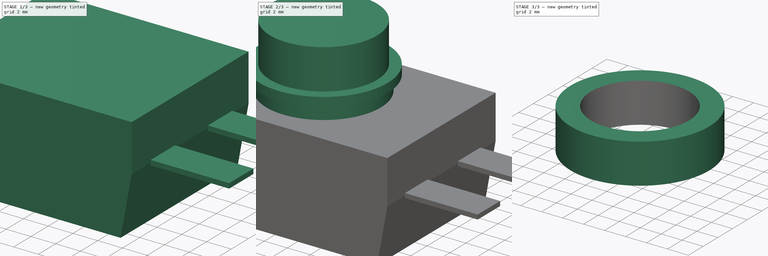
[diagram: build sequence overview — one tinted view per stage of 3, left to right]
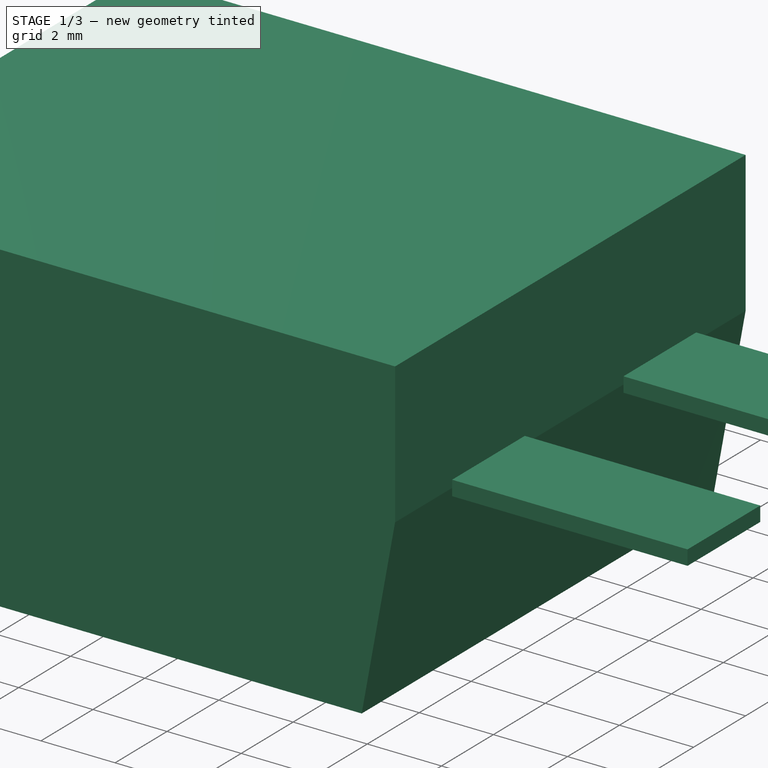
[diagram: stage 1 of 3 — iso view after this stage's code; geometry added in this stage tinted green]
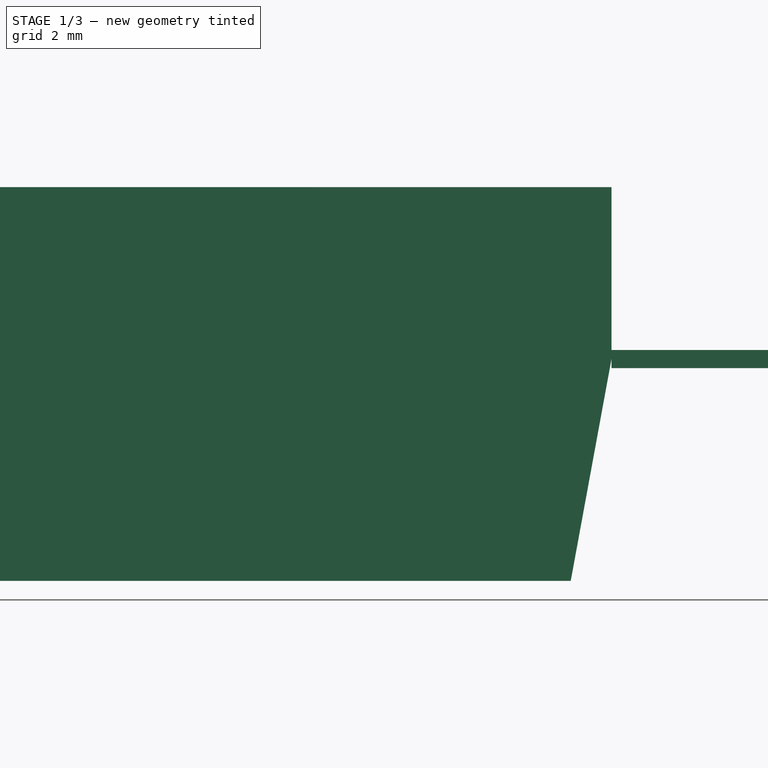
[diagram: stage 1 of 3 — front view after this stage's code; geometry added in this stage tinted green]
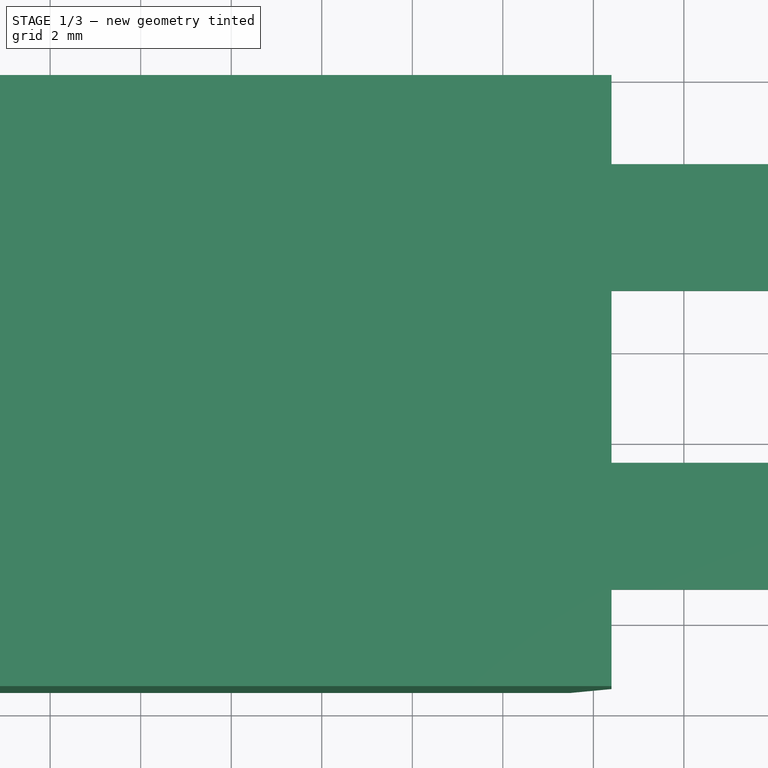
[diagram: stage 1 of 3 — top view after this stage's code; geometry added in this stage tinted green]
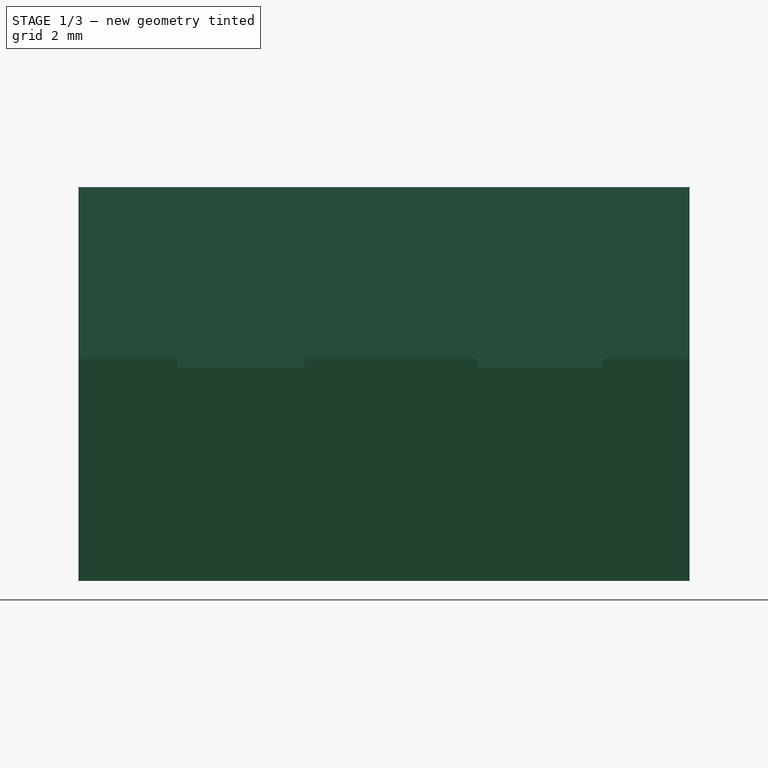
[diagram: stage 1 of 3 — right view after this stage's code; geometry added in this stage tinted green]
FCSTD DOCUMENT  (FreeCAD 0.19R24291 (Git))
Label: 550PB-ND_Judco_40-4520-00
License: Creative Commons Attribution
LicenseURL: http://creativecommons.org/licenses/by/4.0/
objects: Sketcher::SketchObject×7, PartDesign::Pad×7, PartDesign::Plane×6, PartDesign::Body×2, PartDesign::SubShapeBinder×1, PartDesign::ShapeBinder×1, App::Part×1
note: 31 computed .brp shape members not serialized (recipe doc carries the construction recipe); baked Part::Feature solids carry a one-line shape summary decoded from their .brp

FEATURE [Sketcher::SketchObject] Sketch
  FullyConstrained = true
  MapMode = 5
  Placement = pos=(0,0,0) rot=(1,0,0;1.5708rad)
  Support = -> [XZ_Plane]
  sketch-geometry (5):
    g0: LineSegment StartX=0 StartY=8.7 StartZ=0 EndX=0 EndY=0 EndZ=0
    g1: LineSegment StartX=0 StartY=0 StartZ=0 EndX=15.5 EndY=0 EndZ=0
    g2: LineSegment StartX=15.5 StartY=0 StartZ=0 EndX=16.4 EndY=4.9 EndZ=0
    g3: LineSegment StartX=16.4 StartY=4.9 StartZ=0 EndX=16.4 EndY=8.7 EndZ=0
    g4: LineSegment StartX=16.4 StartY=8.7 StartZ=0 EndX=0 EndY=8.7 EndZ=0
  constraints (14):
    c: PointOnObject(g0,g-2)
    c: Coincident(g0,g-1)
    c: Coincident(g0,g1)
    c: PointOnObject(g1,g-1)
    c: Coincident(g1,g2)
    c: Coincident(g2,g3)
    c: Vertical(g3)
    c: Coincident(g3,g4)
    c: Coincident(g4,g0)
    c: Horizontal(g4)
    c: DistanceX(g1,g1) = 15.5
    c: DistanceY(g0,g0) = 8.7
    c: DistanceX(g4,g4) = 16.4
    c: DistanceY(g3,g3) = 3.8
FEATURE [PartDesign::Pad] Pad
  Direction = (1,1,1)
  Length = 13.5
  Length2 = 100
  Placement = pos=(0,0,0) rot=(1,0,0;1.5708rad)
  Profile = -> Sketch
  Type = 0
FEATURE [PartDesign::Plane] DatumPlane
  AttachmentOffset = pos=(0,0,0) rot=(1,0,0;1.5708rad)
  Length = 60
  MapMode = 7
  Placement = pos=(16.4,3.3e-15,4.9) rot=(0,1,0;3.14159rad)
  ResizeMode = 0
  Support = -> [Pad]
  Width = 60
FEATURE [Sketcher::SketchObject] Sketch001
  FullyConstrained = false
  MapMode = 5
  Placement = pos=(16.4,3.3e-15,4.9) rot=(0,1,0;3.14159rad)
  Support = -> [DatumPlane]
  sketch-geometry (8):
    g0: LineSegment StartX=0 StartY=-1.90405 StartZ=0 EndX=-6.35 EndY=-1.90405 EndZ=0
    g1: LineSegment StartX=-6.35 StartY=-1.90405 StartZ=0 EndX=-6.35 EndY=-4.70405 EndZ=0
    g2: LineSegment StartX=-6.35 StartY=-4.70405 StartZ=0 EndX=0 EndY=-4.70405 EndZ=0
    g3: LineSegment StartX=0 StartY=-4.70405 StartZ=0 EndX=0 EndY=-1.90405 EndZ=0
    g4: LineSegment StartX=0 StartY=-8.50405 StartZ=0 EndX=-6.35 EndY=-8.50405 EndZ=0
    g5: LineSegment StartX=-6.35 StartY=-8.50405 StartZ=0 EndX=-6.35 EndY=-11.304 EndZ=0
    g6: LineSegment StartX=-6.35 StartY=-11.304 StartZ=0 EndX=0 EndY=-11.304 EndZ=0
    g7: LineSegment StartX=0 StartY=-11.304 StartZ=0 EndX=0 EndY=-8.50405 EndZ=0
  constraints (23):
    c: Coincident(g0,g1)
    c: Coincident(g1,g2)
    c: Coincident(g2,g3)
    c: Coincident(g3,g0)
    c: Horizontal(g0)
    c: Horizontal(g2)
    c: Vertical(g1)
    c: Vertical(g3)
    c: PointOnObject(g0,g-2)
    c: Coincident(g4,g5)
    c: Coincident(g5,g6)
    c: Coincident(g6,g7)
    c: Coincident(g7,g4)
    c: Horizontal(g4)
    c: Horizontal(g6)
    c: Vertical(g5)
    c: Vertical(g7)
    c: PointOnObject(g4,g-2)
    c: Equal(g4,g2)
    c: Equal(g5,g1)
    c: DistanceY(g5,g5) = 2.8
    c: DistanceX(g0,g0) = 6.35
    c: DistanceY(g4,g1) = 3.8
FEATURE [PartDesign::Pad] Pad001
  BaseFeature = -> Pad
  Direction = (1,1,1)
  Length = 0.4
  Length2 = 100
  Midplane = true
  Placement = pos=(0,0,0) rot=(1,0,0;1.5708rad)
  Profile = -> Sketch001
  Type = 0
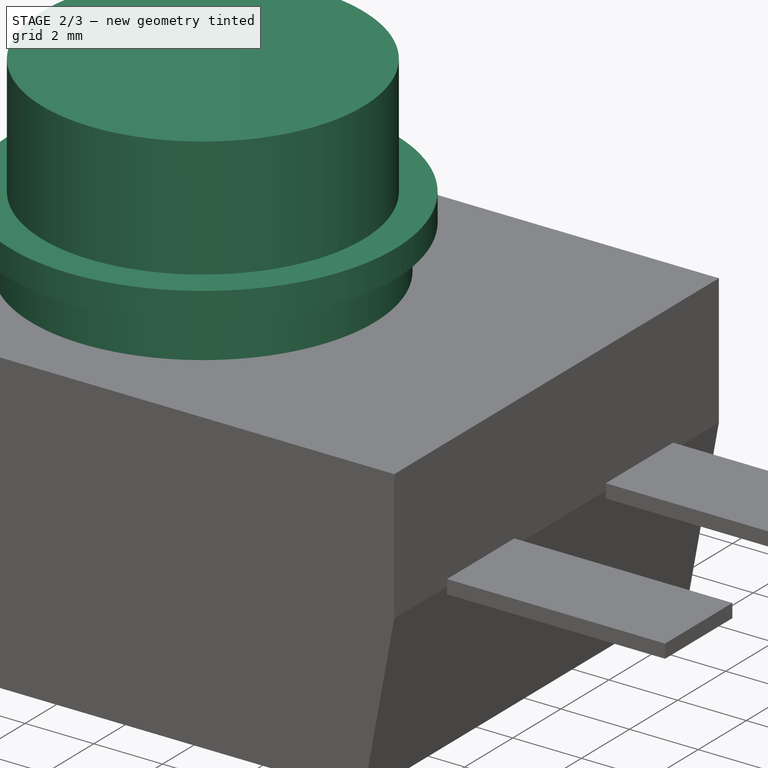
[diagram: stage 2 of 3 — iso view after this stage's code; geometry added in this stage tinted green]
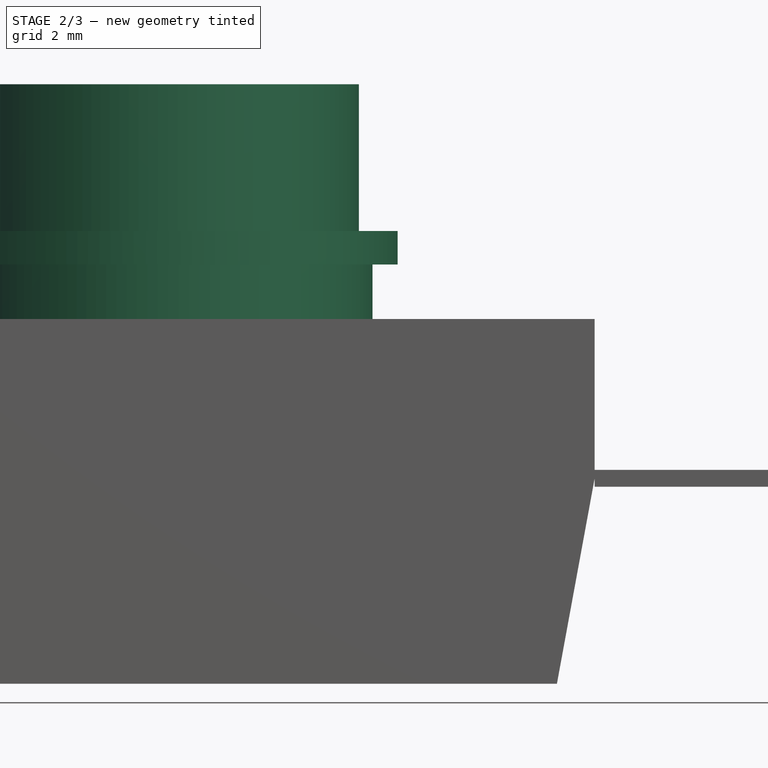
[diagram: stage 2 of 3 — front view after this stage's code; geometry added in this stage tinted green]
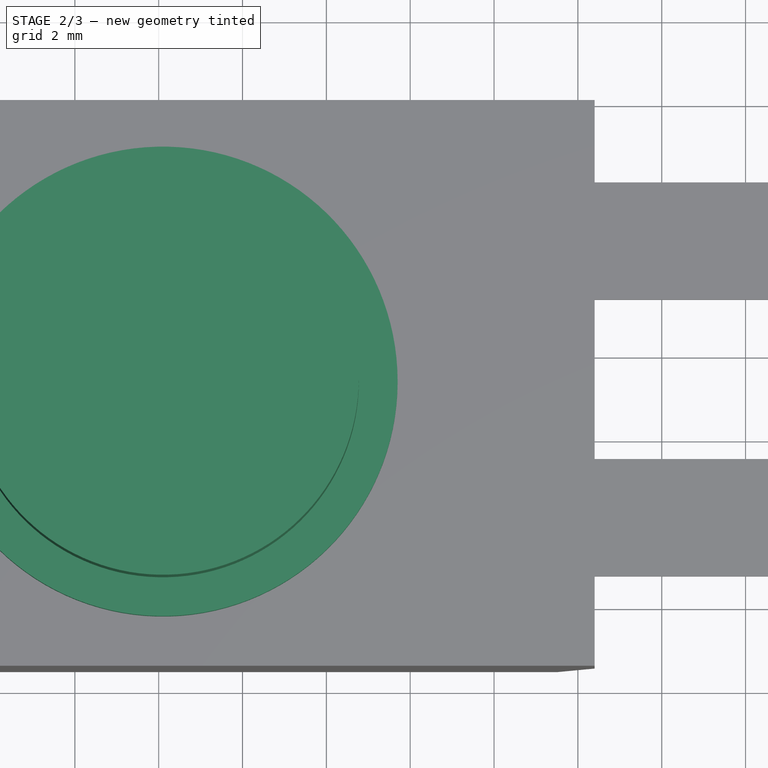
[diagram: stage 2 of 3 — top view after this stage's code; geometry added in this stage tinted green]
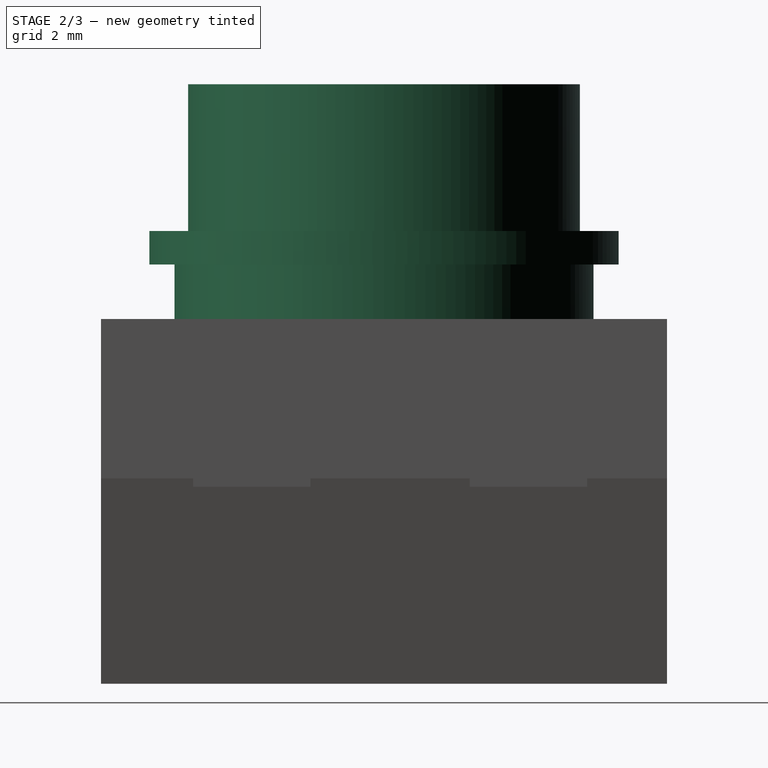
[diagram: stage 2 of 3 — right view after this stage's code; geometry added in this stage tinted green]
FEATURE [PartDesign::Plane] DatumPlane001
  Length = 60
  MapMode = 5
  Placement = pos=(0,9.7e-15,8.7) rot=(0,0,1;3.14159rad)
  ResizeMode = 0
  Support = -> [Pad001]
  Width = 60
FEATURE [Sketcher::SketchObject] Sketch002
  ExternalGeometry = -> [Pad001]
  FullyConstrained = true
  MapMode = 5
  Placement = pos=(0,9.7e-15,8.7) rot=(0,0,1;3.14159rad)
  Support = -> [DatumPlane001]
  sketch-geometry (3):
    g0: Circle CenterX=-6.1 CenterY=6.75 CenterZ=0 NormalX=0 NormalY=0 NormalZ=1 AngleXU=0 Radius=5
    g1: LineSegment StartX=-6.1 StartY=6.75 StartZ=0 EndX=-6.1 EndY=13.5 EndZ=0
    g2: LineSegment StartX=-6.1 StartY=6.75 StartZ=0 EndX=-6.1 EndY=0 EndZ=0
  constraints (9):
    c: Diameter(g0) = 10
    c: DistanceX(g0,g-3) = 6.1
    c: Coincident(g1,g0)
    c: PointOnObject(g1,g-3)
    c: Vertical(g1)
    c: Coincident(g2,g0)
    c: PointOnObject(g2,g-4)
    c: Vertical(g2)
    c: Equal(g1,g2)
FEATURE [PartDesign::Pad] Pad002
  BaseFeature = -> Pad001
  Direction = (1,1,1)
  Length = 1.3
  Length2 = 100
  Placement = pos=(0,0,0) rot=(1,0,0;1.5708rad)
  Profile = -> Sketch002
  Type = 0
FEATURE [PartDesign::Plane] DatumPlane002
  Length = 60
  MapMode = 5
  Placement = pos=(-1.2e-15,1.47e-14,10) rot=(0,0,1;3.14159rad)
  ResizeMode = 0
  Support = -> [Pad002]
  Width = 60
FEATURE [Sketcher::SketchObject] Sketch003
  ExternalGeometry = -> [Pad002]
  FullyConstrained = true
  MapMode = 5
  Placement = pos=(-1.2e-15,1.47e-14,10) rot=(0,0,1;3.14159rad)
  Support = -> [DatumPlane002]
  sketch-geometry (1):
    g0: Circle CenterX=-6.1 CenterY=6.75 CenterZ=0 NormalX=0 NormalY=0 NormalZ=1 AngleXU=0 Radius=5.6
  constraints (2):
    c: Coincident(g0,g-3)
    c: Diameter(g0) = 11.2
FEATURE [PartDesign::Pad] Pad003
  BaseFeature = -> Pad002
  Direction = (1,1,1)
  Length = 0.8
  Length2 = 100
  Placement = pos=(0,0,0) rot=(1,0,0;1.5708rad)
  Profile = -> Sketch003
  Type = 0
FEATURE [PartDesign::Plane] DatumPlane003
  Length = 60
  MapMode = 5
  Placement = pos=(0,2.06e-14,10.8) rot=(0,0,1;3.14159rad)
  ResizeMode = 0
  Support = -> [Pad003]
  Width = 60
FEATURE [Sketcher::SketchObject] Sketch004
  ExternalGeometry = -> [Pad003]
  FullyConstrained = true
  MapMode = 5
  Placement = pos=(0,2.06e-14,10.8) rot=(0,0,1;3.14159rad)
  Support = -> [DatumPlane003]
  sketch-geometry (1):
    g0: Circle CenterX=-6.1 CenterY=6.75 CenterZ=0 NormalX=0 NormalY=0 NormalZ=1 AngleXU=0 Radius=4.675
  constraints (2):
    c: Coincident(g0,g-3)
    c: Diameter(g0) = 9.35
FEATURE [PartDesign::Pad] Pad004
  BaseFeature = -> Pad003
  Direction = (1,1,1)
  Length = 3.5
  Length2 = 100
  Placement = pos=(0,0,0) rot=(1,0,0;1.5708rad)
  Profile = -> Sketch004
  Type = 0
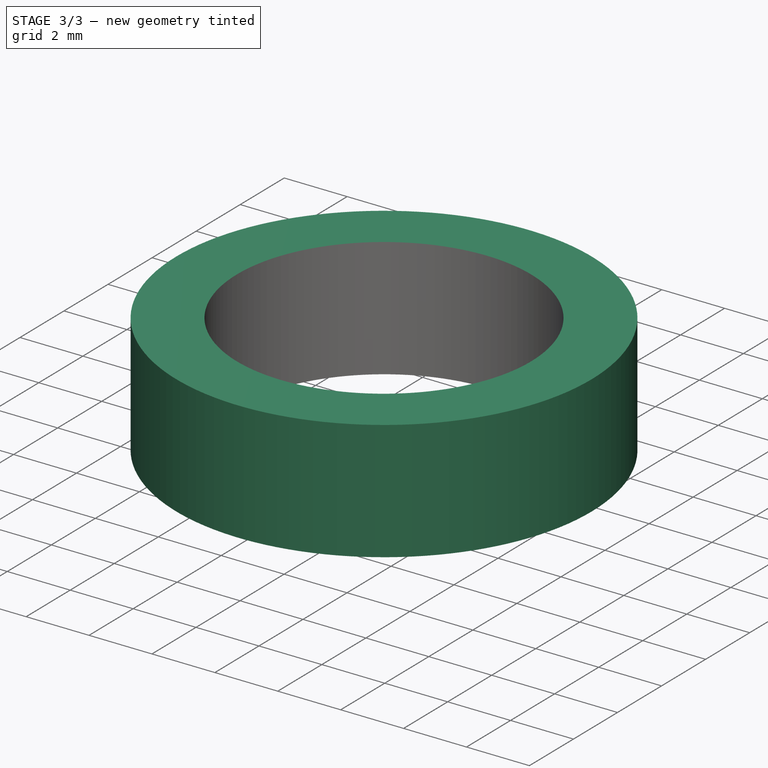
[diagram: stage 3 of 3 — iso view after this stage's code; geometry added in this stage tinted green]
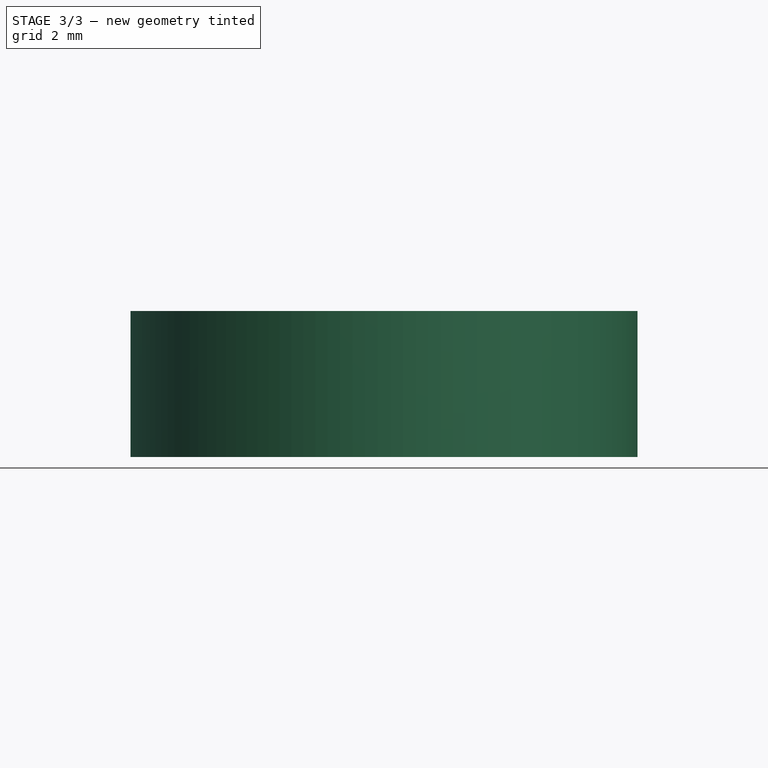
[diagram: stage 3 of 3 — front view after this stage's code; geometry added in this stage tinted green]
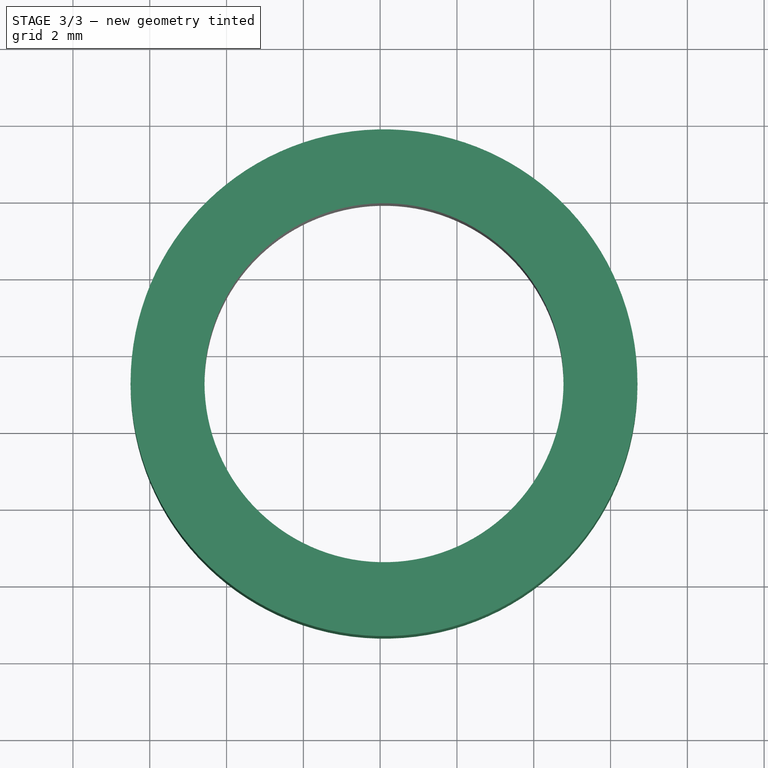
[diagram: stage 3 of 3 — top view after this stage's code; geometry added in this stage tinted green]
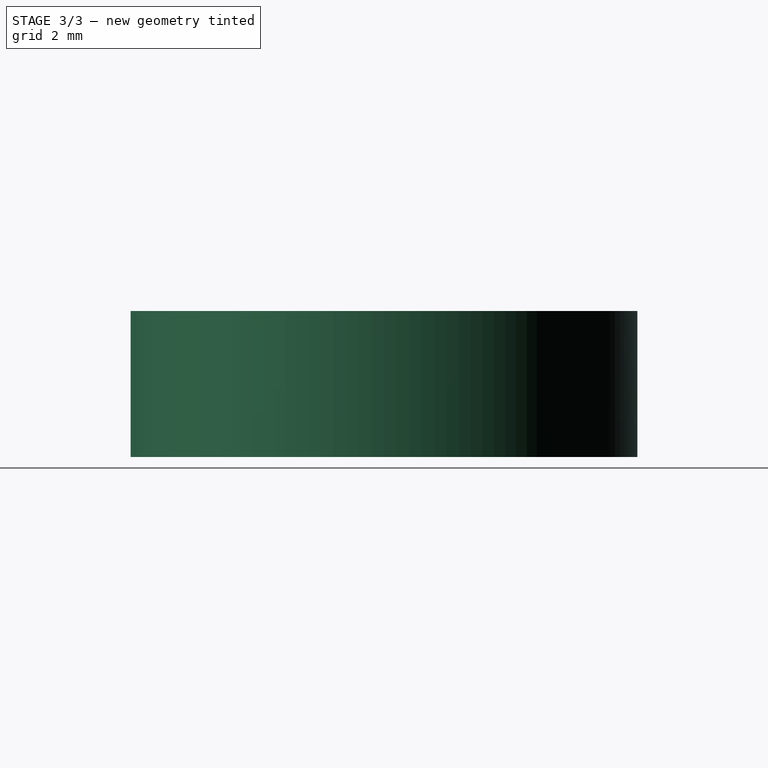
[diagram: stage 3 of 3 — right view after this stage's code; geometry added in this stage tinted green]
FEATURE [PartDesign::Plane] DatumPlane004
  Length = 60
  MapMode = 5
  Placement = pos=(-1.8e-15,3.46e-14,14.3) rot=(0,0,1;3.14159rad)
  ResizeMode = 0
  Support = -> [Pad004]
  Width = 60
FEATURE [Sketcher::SketchObject] Sketch005
  ExternalGeometry = -> [Pad004]
  FullyConstrained = true
  MapMode = 5
  Placement = pos=(-1.8e-15,3.46e-14,14.3) rot=(0,0,1;3.14159rad)
  Support = -> [DatumPlane004]
  sketch-geometry (1):
    g0: Circle CenterX=-6.1 CenterY=6.75 CenterZ=0 NormalX=0 NormalY=0 NormalZ=1 AngleXU=0 Radius=2.75
  constraints (2):
    c: Coincident(g0,g-3)
    c: Diameter(g0) = 5.5
FEATURE [PartDesign::Pad] Pad005
  BaseFeature = -> Pad004
  Direction = (1,1,1)
  Length = 3.2
  Length2 = 100
  Placement = pos=(0,0,0) rot=(1,0,0;1.5708rad)
  Profile = -> Sketch005
  Type = 0
FEATURE [PartDesign::Body] Body
  Group = -> [Sketch,Pad,DatumPlane,Sketch001,Pad001,DatumPlane001,Sketch002,Pad002,DatumPlane002,Sketch003,Pad003,DatumPlane003,Sketch004,Pad004,DatumPlane004,Sketch005,Pad005]
  Origin = -> Origin
  Tip = -> Pad005
FEATURE [PartDesign::SubShapeBinder] Binder
  BindMode = 0
  ClaimChildren = false
  Context = -> Body001 [Binder.]
  Fuse = false
  MakeFace = true
  PartialLoad = false
  Relative = true
  Support = -> [Body[Pad005.Edge9]]
  _Version = 2
FEATURE [PartDesign::ShapeBinder] CopyPad005
  Placement = pos=(0,0,0) rot=(1,0,0;1.5708rad)
  TraceSupport = false
FEATURE [PartDesign::Plane] DatumPlane005
  Length = 60
  MapMode = 5
  Placement = pos=(0,3.14e-14,10.8) rot=(0,0,1;3.14159rad)
  ResizeMode = 0
  Support = -> [CopyPad005]
  Width = 60
FEATURE [Sketcher::SketchObject] Sketch006
  ExternalGeometry = -> [Binder]
  FullyConstrained = true
  MapMode = 5
  Placement = pos=(0,3.14e-14,10.8) rot=(0,0,1;3.14159rad)
  Support = -> [DatumPlane005]
  sketch-geometry (2):
    g0: Circle CenterX=-6.1 CenterY=6.75 CenterZ=0 NormalX=0 NormalY=0 NormalZ=1 AngleXU=0 Radius=4.675
    g1: Circle CenterX=-6.1 CenterY=6.75 CenterZ=0 NormalX=0 NormalY=0 NormalZ=1 AngleXU=0 Radius=6.6
  constraints (4):
    c: Coincident(g0,g-3)
    c: Equal(g0,g-3)
    c: Coincident(g1,g0)
    c: Diameter(g1) = 13.2
FEATURE [PartDesign::Pad] Pad006
  Direction = (1,1,1)
  Length = 3.8
  Length2 = 100
  Placement = pos=(0,3.14e-14,10.8) rot=(0,0,1;3.14159rad)
  Profile = -> Sketch006
  Type = 0
FEATURE [PartDesign::Body] Body001  label="Nut"
  Group = -> [Binder,DatumPlane005,CopyPad005,Sketch006,Pad006]
  Origin = -> Origin001
  Tip = -> Pad006
FEATURE [App::Part] Part
  Group = -> [Body001,Body]
  Origin = -> Origin002
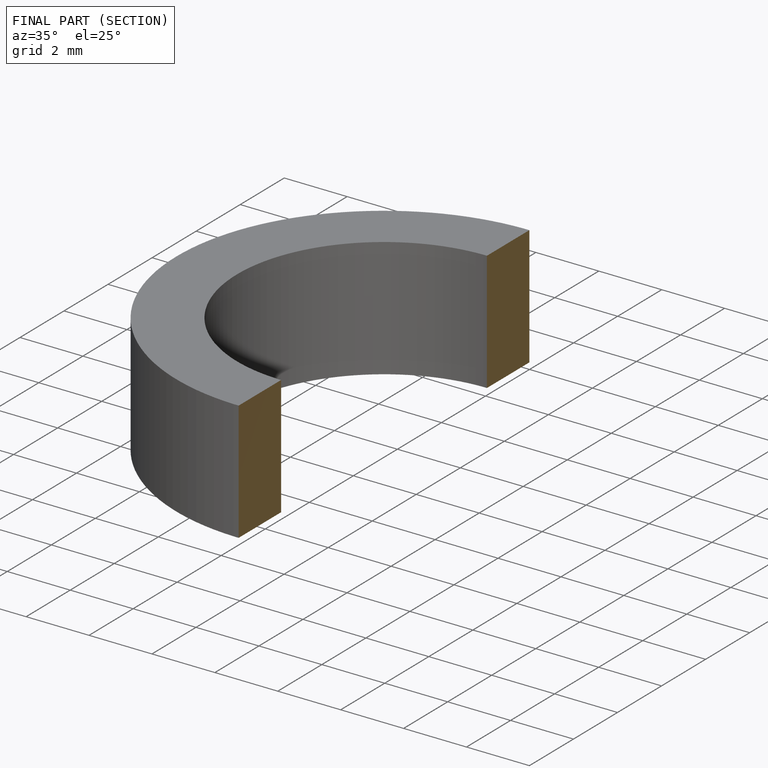
[diagram: finished part — half-section view (interior)]
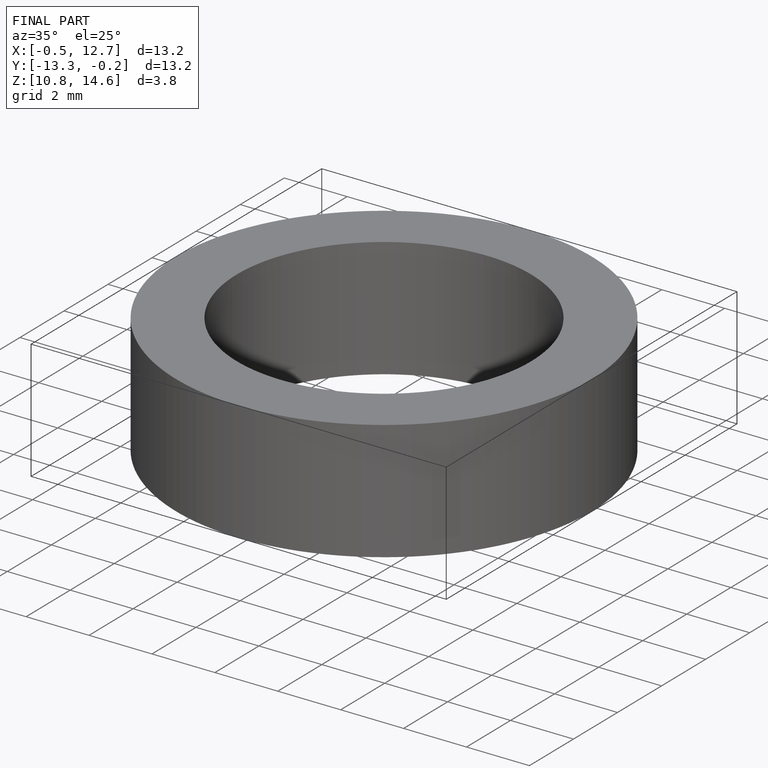
[diagram: finished part — iso view with bounding-box wireframe]
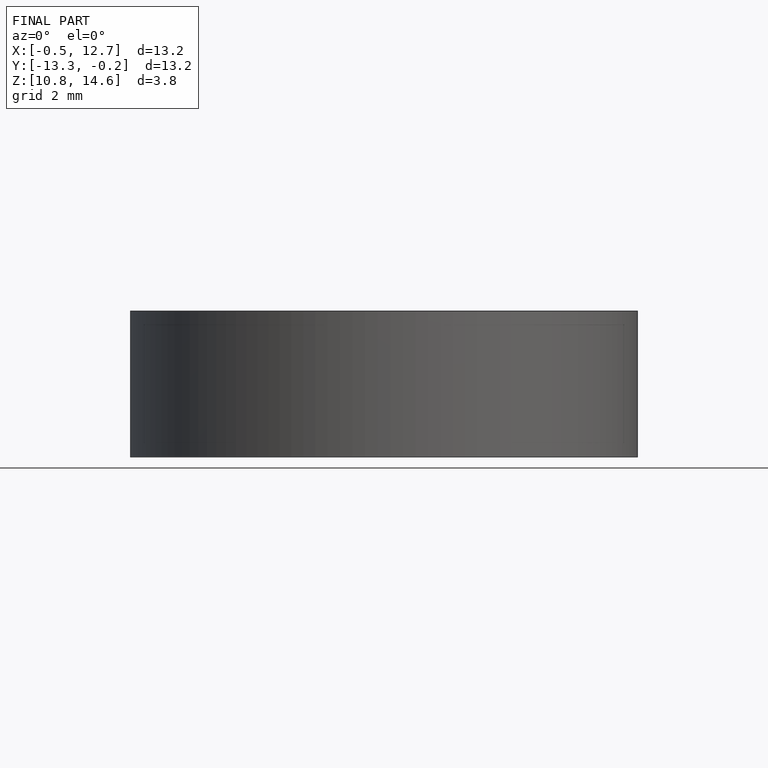
[diagram: finished part — front view with bounding-box wireframe]
